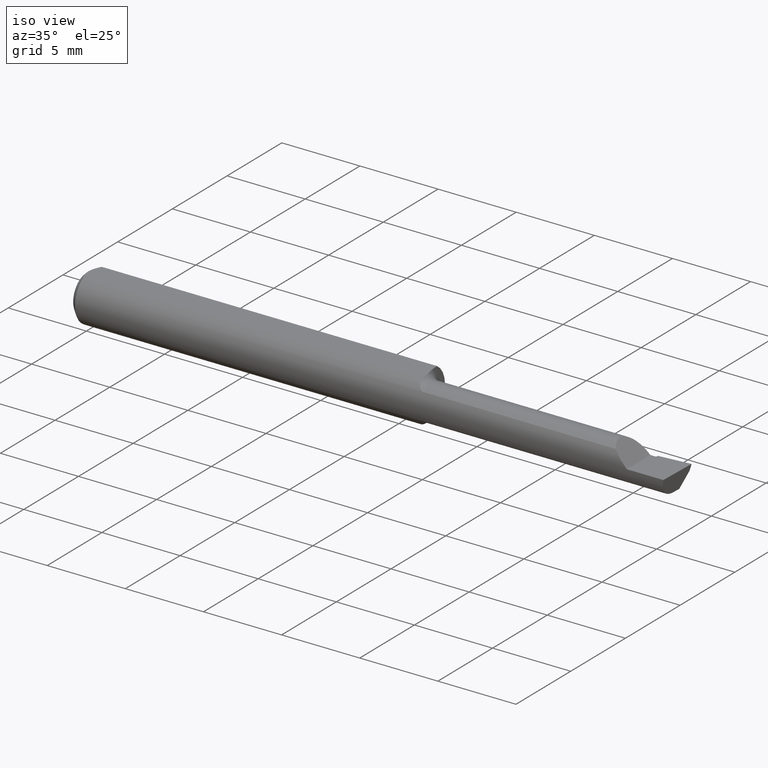
[diagram: clean part render]
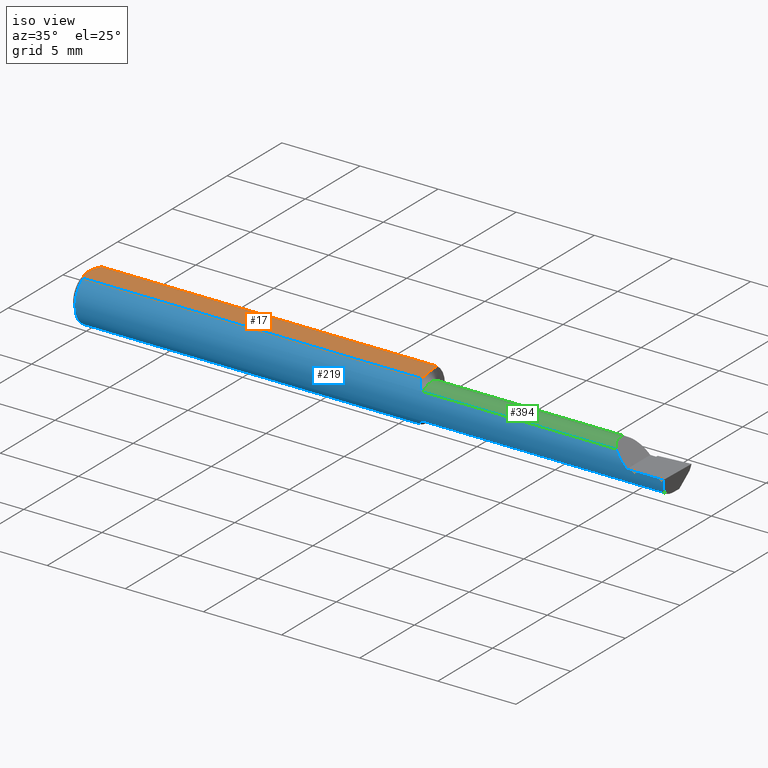
[diagram: same view with three faces highlighted in distinct colors, each labeled with its STEP entity id]
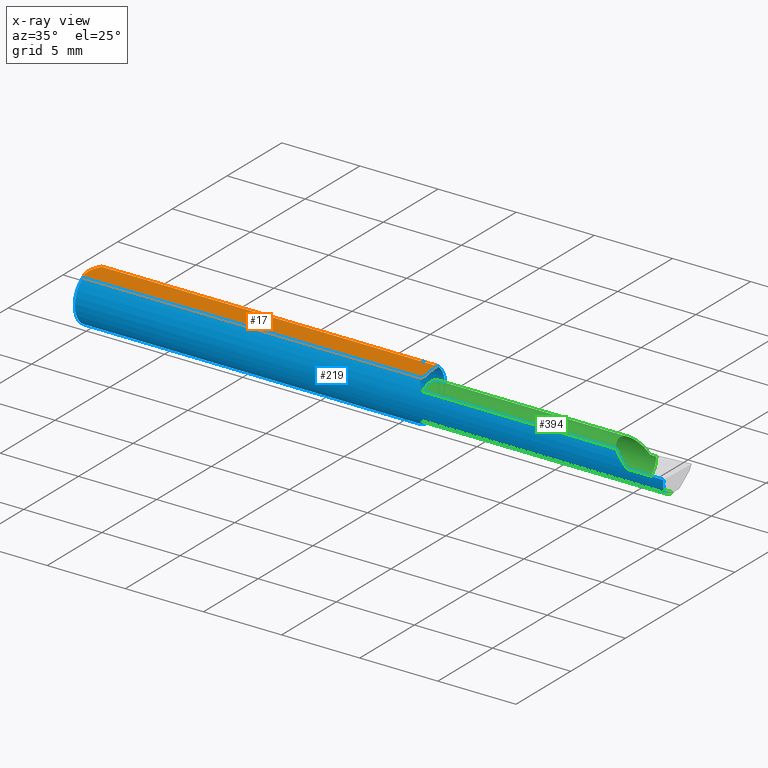
[diagram: x-ray of the same camera — body ghosted, the three highlighted faces saturated]
A machine part, iso view with three faces highlighted in distinct colors.
The next image is the same camera in x-ray (body ghosted, the three faces saturated) — at least one of them is partly hidden behind the body in this view.
Their STEP definitions:

[orange] entity #17 — the highlighted planar face has unit normal (0, -0, -1).
#1 = DIRECTION ( 'NONE',  ( 5.691349986800549142E-18, -1.000000000000000000, 7.598598113218357399E-17 ) ) ;
#2 = VERTEX_POINT ( 'NONE', #371 ) ;
#6 = CARTESIAN_POINT ( 'NONE',  ( 0.004999999999989931769, 7.898418181085889318E-16, 0.05235000000000000070 ) ) ;
#17 = ADVANCED_FACE ( 'NONE', ( #181 ), #389, .F. ) ;
#23 = CARTESIAN_POINT ( 'NONE',  ( 0.000000000000000000, 0.03386738844375223462, 0.05234999999999997988 ) ) ;
#25 = B_SPLINE_CURVE_WITH_KNOTS ( 'NONE', 3,
 ( #290, #202, #486, #287, #250, #6 ),
 .UNSPECIFIED., .F., .F.,
 ( 4, 2, 4 ),
 ( 0.002133667072902290657, 0.002585433046183636171, 0.003037199019464981685 ),
 .UNSPECIFIED. ) ;
#28 = LINE ( 'NONE', #23, #36 ) ;
#36 = VECTOR ( 'NONE', #452, 39.37007874015748143 ) ;
#41 = B_SPLINE_CURVE_WITH_KNOTS ( 'NONE', 3,
 ( #244, #583, #52, #392, #243, #483, #445, #197, #149, #101, #194, #95, #50, #337 ),
 .UNSPECIFIED., .F., .F.,
 ( 4, 2, 2, 2, 2, 2, 4 ),
 ( 0.008234143088603517943, 0.008591734916881395637, 0.008770530831020334483, 0.008859928788089801305, 0.008949326745159269861, 0.009306918573437145820, 0.009664510401715021778 ),
 .UNSPECIFIED. ) ;
#50 = CARTESIAN_POINT ( 'NONE',  ( 0.8670657631504199436, -0.02914627190158990133, 0.05235000000000000764 ) ) ;
#52 = CARTESIAN_POINT ( 'NONE',  ( 0.8606843363331831975, 0.01400540109987305146, 0.05235000000000000070 ) ) ;
#66 = ORIENTED_EDGE ( 'NONE', *, *, #508, .F. ) ;
#70 = CARTESIAN_POINT ( 'NONE',  ( 0.01500000000000185039, -0.03386738844380016850, 0.05235000000000000070 ) ) ;
#95 = CARTESIAN_POINT ( 'NONE',  ( 0.8675168895146677661, -0.02435447415594422377, 0.05235000000000000070 ) ) ;
#99 = CARTESIAN_POINT ( 'NONE',  ( 0.009669996313769784607, 0.02323004575534281385, 0.05234999999999998682 ) ) ;
#101 = CARTESIAN_POINT ( 'NONE',  ( 0.8661447494546045123, -0.01034308142135324446, 0.05235000000000000070 ) ) ;
#113 = ORIENTED_EDGE ( 'NONE', *, *, #325, .F. ) ;
#149 = CARTESIAN_POINT ( 'NONE',  ( 0.8648180388757457093, -0.004579228880846318919, 0.05235000000000001458 ) ) ;
#163 = CARTESIAN_POINT ( 'NONE',  ( 0.8600000000000000977, 0.02414546164772663275, 0.05235000000000000070 ) ) ;
#165 = VECTOR ( 'NONE', #1, 39.37007874015748143 ) ;
#181 = FACE_OUTER_BOUND ( 'NONE', #391, .T. ) ;
#188 = CARTESIAN_POINT ( 'NONE',  ( 0.000000000000000000, -0.03386738844375222768, 0.05234999999999997988 ) ) ;
#191 = DIRECTION ( 'NONE',  ( -1.000000000000000000, -0.000000000000000000, -0.000000000000000000 ) ) ;
#194 = CARTESIAN_POINT ( 'NONE',  ( 0.8670297040742722672, -0.01497150789875728583, 0.05235000000000000070 ) ) ;
#197 = CARTESIAN_POINT ( 'NONE',  ( 0.8645436151954090098, -0.003431463083333101752, 0.05235000000000000764 ) ) ;
#200 = CARTESIAN_POINT ( 'NONE',  ( 0.004999999999989931769, 7.898418181085889318E-16, 0.05235000000000000070 ) ) ;
#202 = CARTESIAN_POINT ( 'NONE',  ( 0.01216137397042175820, -0.02864146636719541034, 0.05235000000000000070 ) ) ;
#233 = EDGE_CURVE ( 'NONE', #2, #557, #28, .T. ) ;
#243 = CARTESIAN_POINT ( 'NONE',  ( 0.8627471345220282251, 0.004017454403653720856, 0.05235000000000000070 ) ) ;
#244 = CARTESIAN_POINT ( 'NONE',  ( 0.8600000000000000977, 0.02414546164772663275, 0.05235000000000000070 ) ) ;
#250 = CARTESIAN_POINT ( 'NONE',  ( 0.004999999999998879473, -0.005957634400466955450, 0.05235000000000000070 ) ) ;
#263 = VERTEX_POINT ( 'NONE', #163 ) ;
#272 = ORIENTED_EDGE ( 'NONE', *, *, #233, .F. ) ;
#287 = CARTESIAN_POINT ( 'NONE',  ( 0.006057557792978140489, -0.01187252718384441616, 0.05234999999999998682 ) ) ;
#289 = VERTEX_POINT ( 'NONE', #450 ) ;
#290 = CARTESIAN_POINT ( 'NONE',  ( 0.01500000000000185039, -0.03386738844380016850, 0.05235000000000000070 ) ) ;
#304 = LINE ( 'NONE', #496, #165 ) ;
#325 = EDGE_CURVE ( 'NONE', #557, #263, #304, .T. ) ;
#326 = ORIENTED_EDGE ( 'NONE', *, *, #548, .F. ) ;
#337 = CARTESIAN_POINT ( 'NONE',  ( 0.8661821896890746775, -0.03386738844375222074, 0.05235000000000000070 ) ) ;
#346 = DIRECTION ( 'NONE',  ( 0.000000000000000000, -7.598598113218357399E-17, -1.000000000000000000 ) ) ;
#348 = CARTESIAN_POINT ( 'NONE',  ( 0.006064493299689842180, 0.01189382783781397189, 0.05235000000000000070 ) ) ;
#367 = ORIENTED_EDGE ( 'NONE', *, *, #488, .F. ) ;
#371 = CARTESIAN_POINT ( 'NONE',  ( 0.01500000000000000465, 0.03386738844375223462, 0.05234999999999997988 ) ) ;
#380 = LINE ( 'NONE', #188, #431 ) ;
#389 = PLANE ( 'NONE',  #421 ) ;
#391 = EDGE_LOOP ( 'NONE', ( #66, #113, #272, #326, #367, #399 ) ) ;
#392 = CARTESIAN_POINT ( 'NONE',  ( 0.8621728268178152632, 0.006508548278878081503, 0.05235000000000000070 ) ) ;
#399 = ORIENTED_EDGE ( 'NONE', *, *, #423, .F. ) ;
#421 = AXIS2_PLACEMENT_3D ( 'NONE', #441, #346, #446 ) ;
#423 = EDGE_CURVE ( 'NONE', #603, #629, #380, .T. ) ;
#431 = VECTOR ( 'NONE', #191, 39.37007874015748143 ) ;
#440 = CARTESIAN_POINT ( 'NONE',  ( 0.01500000000000000465, 0.03386738844375223462, 0.05234999999999997988 ) ) ;
#441 = CARTESIAN_POINT ( 'NONE',  ( 1.500000000000000222, 0.1123499999999999915, 0.05234999999999998682 ) ) ;
#445 = CARTESIAN_POINT ( 'NONE',  ( 0.8639433730835746061, -0.0009488278625737271406, 0.05234999999999998682 ) ) ;
#446 = DIRECTION ( 'NONE',  ( 0.000000000000000000, 1.000000000000000000, -7.598598113218357399E-17 ) ) ;
#450 = CARTESIAN_POINT ( 'NONE',  ( 0.004999999999989931769, 7.898418181085889318E-16, 0.05235000000000000070 ) ) ;
#452 = DIRECTION ( 'NONE',  ( 1.000000000000000000, 0.000000000000000000, 0.000000000000000000 ) ) ;
#483 = CARTESIAN_POINT ( 'NONE',  ( 0.8636403934954570705, 0.0002918085034137851675, 0.05234999999999998682 ) ) ;
#486 = CARTESIAN_POINT ( 'NONE',  ( 0.009678036133109307534, -0.02325481837211496039, 0.05235000000000000070 ) ) ;
#488 = EDGE_CURVE ( 'NONE', #629, #289, #25, .T. ) ;
#496 = CARTESIAN_POINT ( 'NONE',  ( 0.8600000000000000977, 0.1123499999999999915, 0.05234999999999998682 ) ) ;
#508 = EDGE_CURVE ( 'NONE', #263, #603, #41, .T. ) ;
#530 = CARTESIAN_POINT ( 'NONE',  ( 0.8600000000000000977, 0.03386738844375224156, 0.05235000000000000070 ) ) ;
#537 = CARTESIAN_POINT ( 'NONE',  ( 0.004999999999999268051, 0.005945714695019511074, 0.05235000000000000070 ) ) ;
#548 = EDGE_CURVE ( 'NONE', #289, #2, #596, .T. ) ;
#557 = VERTEX_POINT ( 'NONE', #530 ) ;
#558 = CARTESIAN_POINT ( 'NONE',  ( 0.8661821896890746775, -0.03386738844375222074, 0.05235000000000000070 ) ) ;
#583 = CARTESIAN_POINT ( 'NONE',  ( 0.8599999999999998757, 0.01903747135664260806, 0.05235000000000001458 ) ) ;
#590 = CARTESIAN_POINT ( 'NONE',  ( 0.01218518006020415795, 0.02868529347538067639, 0.05235000000000000070 ) ) ;
#596 = B_SPLINE_CURVE_WITH_KNOTS ( 'NONE', 3,
 ( #200, #537, #348, #99, #590, #440 ),
 .UNSPECIFIED., .F., .F.,
 ( 4, 2, 4 ),
 ( 0.003037199019464981685, 0.003488061124369676216, 0.003938923229274370746 ),
 .UNSPECIFIED. ) ;
#603 = VERTEX_POINT ( 'NONE', #558 ) ;
#629 = VERTEX_POINT ( 'NONE', #70 ) ;

[blue] entity #219 — the highlighted cylindrical surface (edge-blend (fillet) strip) has radius 1.5837 mm, axis along (-1, -0, -0).
#2 = VERTEX_POINT ( 'NONE', #371 ) ;
#4 = CARTESIAN_POINT ( 'NONE',  ( 0.8698990837423206113, -0.04251446938472885906, 0.04588310374207914960 ) ) ;
#5 = CARTESIAN_POINT ( 'NONE',  ( 1.405000000000000249, -0.06235000000000005121, 1.163414459189985436E-17 ) ) ;
#10 = CARTESIAN_POINT ( 'NONE',  ( 0.8787757133464819681, -0.05116520334387904267, -0.03564627526859106416 ) ) ;
#13 = CARTESIAN_POINT ( 'NONE',  ( 0.8599999999999956568, 0.004792881695546979959, -0.06254535345742004426 ) ) ;
#23 = CARTESIAN_POINT ( 'NONE',  ( 0.000000000000000000, 0.03386738844375223462, 0.05234999999999997988 ) ) ;
#28 = LINE ( 'NONE', #23, #36 ) ;
#30 = DIRECTION ( 'NONE',  ( -1.000000000000000000, -0.000000000000000000, -0.000000000000000000 ) ) ;
#33 = CARTESIAN_POINT ( 'NONE',  ( 1.493589448587071544, -0.05267366071428580820, -0.03336177403790607093 ) ) ;
#34 = VERTEX_POINT ( 'NONE', #249 ) ;
#36 = VECTOR ( 'NONE', #452, 39.37007874015748143 ) ;
#38 = ORIENTED_EDGE ( 'NONE', *, *, #423, .T. ) ;
#45 = CARTESIAN_POINT ( 'NONE',  ( 1.494656860756163885, -0.05903713403021959572, -0.02331472336167218079 ) ) ;
#54 = CARTESIAN_POINT ( 'NONE',  ( 0.8678735227475140590, -0.03849383661596396389, 0.04935695859860204926 ) ) ;
#57 = CARTESIAN_POINT ( 'NONE',  ( 0.8659889881172213588, -0.03406974560157234599, -0.05264335079965574982 ) ) ;
#59 = CARTESIAN_POINT ( 'NONE',  ( 0.8602764403634770574, -0.002103274276246028252, -0.06268864719924559237 ) ) ;
#64 = VECTOR ( 'NONE', #175, 39.37007874015748143 ) ;
#70 = CARTESIAN_POINT ( 'NONE',  ( 0.01500000000000185039, -0.03386738844380016850, 0.05235000000000000070 ) ) ;
#74 = LINE ( 'NONE', #502, #256 ) ;
#78 = VERTEX_POINT ( 'NONE', #5 ) ;
#86 = ORIENTED_EDGE ( 'NONE', *, *, #233, .T. ) ;
#96 = EDGE_CURVE ( 'NONE', #78, #170, #274, .T. ) ;
#102 = CARTESIAN_POINT ( 'NONE',  ( 1.405000000000000249, -0.06235000000000005121, 1.163414459189985436E-17 ) ) ;
#105 = EDGE_CURVE ( 'NONE', #225, #170, #485, .T. ) ;
#124 = DIRECTION ( 'NONE',  ( 0.000000000000000000, 0.000000000000000000, 1.000000000000000000 ) ) ;
#125 = ORIENTED_EDGE ( 'NONE', *, *, #436, .T. ) ;
#140 = DIRECTION ( 'NONE',  ( 0.000000000000000000, 1.000000000000000000, 0.000000000000000000 ) ) ;
#151 = CARTESIAN_POINT ( 'NONE',  ( 0.8821345559677671311, -0.05240678568573022694, 0.03378794548805848230 ) ) ;
#153 = CARTESIAN_POINT ( 'NONE',  ( 0.8850000000000001199, -0.05267366071428591229, 0.03336177403790595297 ) ) ;
#159 = CARTESIAN_POINT ( 'NONE',  ( 0.8600000000000000977, 0.01155624999999977677, -0.06126969549408178839 ) ) ;
#170 = VERTEX_POINT ( 'NONE', #535 ) ;
#171 = CARTESIAN_POINT ( 'NONE',  ( 1.493589448587071544, -0.05267366071428580820, -0.03336177403790607093 ) ) ;
#175 = DIRECTION ( 'NONE',  ( -1.000000000000000000, -5.691349986800549142E-18, -0.000000000000000000 ) ) ;
#182 = DIRECTION ( 'NONE',  ( -1.000000000000000000, -0.000000000000000000, -0.000000000000000000 ) ) ;
#186 = ORIENTED_EDGE ( 'NONE', *, *, #105, .F. ) ;
#188 = CARTESIAN_POINT ( 'NONE',  ( 0.000000000000000000, -0.03386738844375222768, 0.05234999999999997988 ) ) ;
#191 = DIRECTION ( 'NONE',  ( -1.000000000000000000, -0.000000000000000000, -0.000000000000000000 ) ) ;
#205 = CARTESIAN_POINT ( 'NONE',  ( 0.8835376041507415623, -0.05267366071513955583, 0.03336177403655844753 ) ) ;
#208 = CARTESIAN_POINT ( 'NONE',  ( 1.152500000000000080, -0.05267366071428580820, -0.03336177403790607093 ) ) ;
#214 = DIRECTION ( 'NONE',  ( -1.000000000000000000, -0.000000000000000000, -0.000000000000000000 ) ) ;
#219 = ADVANCED_FACE ( 'NONE', ( #549 ), #602, .T. ) ;
#225 = VERTEX_POINT ( 'NONE', #357 ) ;
#233 = EDGE_CURVE ( 'NONE', #2, #557, #28, .T. ) ;
#234 = CARTESIAN_POINT ( 'NONE',  ( 0.01500000000000000465, 0.000000000000000000, 0.000000000000000000 ) ) ;
#235 = ORIENTED_EDGE ( 'NONE', *, *, #316, .F. ) ;
#238 = DIRECTION ( 'NONE',  ( 0.000000000000000000, 0.000000000000000000, 1.000000000000000000 ) ) ;
#241 = CARTESIAN_POINT ( 'NONE',  ( 0.8832409546724755423, -0.05267366071428588453, -0.03336177403790597379 ) ) ;
#248 = CARTESIAN_POINT ( 'NONE',  ( 0.8627289934230484292, -0.02215482600002546126, -0.05866202889160986034 ) ) ;
#249 = CARTESIAN_POINT ( 'NONE',  ( 0.01500000000000000465, 0.000000000000000000, -0.06235000000000000264 ) ) ;
#254 = DIRECTION ( 'NONE',  ( 0.000000000000000000, 0.000000000000000000, 1.000000000000000000 ) ) ;
#256 = VECTOR ( 'NONE', #214, 39.37007874015748143 ) ;
#259 = EDGE_LOOP ( 'NONE', ( #235, #125, #576, #582, #186, #531, #38, #465, #560, #86, #420, #566 ) ) ;
#265 = VERTEX_POINT ( 'NONE', #171 ) ;
#266 = AXIS2_PLACEMENT_3D ( 'NONE', #234, #182, #238 ) ;
#267 = CIRCLE ( 'NONE', #266, 0.06235000000000000264 ) ;
#274 =( BOUNDED_CURVE ( )  B_SPLINE_CURVE ( 3, ( #102, #344, #545, #444 ),
 .UNSPECIFIED., .F., .F. ) 
 B_SPLINE_CURVE_WITH_KNOTS ( ( 4, 4 ),
 ( 4.712388980384689674, 5.276982613231238517 ),
 .UNSPECIFIED. ) 
 CURVE ( )  GEOMETRIC_REPRESENTATION_ITEM ( )  RATIONAL_B_SPLINE_CURVE ( ( 1.000000000000000000, 0.9736121104788258984, 0.9736121104788258984, 1.000000000000000000 ) ) 
 REPRESENTATION_ITEM ( '' )  );
#276 = VERTEX_POINT ( 'NONE', #506 ) ;
#281 = CARTESIAN_POINT ( 'NONE',  ( 1.497433779686218935, -0.06235000000000005121, 2.433176676323288696E-19 ) ) ;
#283 = EDGE_CURVE ( 'NONE', #34, #629, #349, .T. ) ;
#286 = AXIS2_PLACEMENT_3D ( 'NONE', #459, #306, #254 ) ;
#296 = CARTESIAN_POINT ( 'NONE',  ( 0.8726126354017768039, -0.04600867268841657420, -0.04219264322731242078 ) ) ;
#299 = CARTESIAN_POINT ( 'NONE',  ( 0.8743270384831822728, -0.04799382633214965832, -0.03989142061000421069 ) ) ;
#306 = DIRECTION ( 'NONE',  ( -1.000000000000000000, -0.000000000000000000, -0.000000000000000000 ) ) ;
#316 = EDGE_CURVE ( 'NONE', #265, #467, #416, .T. ) ;
#324 = CARTESIAN_POINT ( 'NONE',  ( 1.495973035530413053, -0.06235000000000000264, -0.01189272970908753294 ) ) ;
#335 = CARTESIAN_POINT ( 'NONE',  ( 0.8850000000000001199, -0.05267366071428591229, -0.03336177403790595297 ) ) ;
#341 = CARTESIAN_POINT ( 'NONE',  ( 0.8815922039432545487, -0.05228879390856559090, -0.03397671269166890884 ) ) ;
#344 = CARTESIAN_POINT ( 'NONE',  ( 1.393107270290912414, -0.06234999999999999570, 0.01189272970908749824 ) ) ;
#345 = CARTESIAN_POINT ( 'NONE',  ( 0.8850000000000001199, -0.05267366071428591229, -0.03336177403790595297 ) ) ;
#349 = CIRCLE ( 'NONE', #631, 0.06235000000000000264 ) ;
#353 = DIRECTION ( 'NONE',  ( 1.000000000000000000, 5.691349986800549142E-18, 0.000000000000000000 ) ) ;
#357 = CARTESIAN_POINT ( 'NONE',  ( 0.8850000000000001199, -0.05267366071428591229, 0.03336177403790595297 ) ) ;
#364 = CARTESIAN_POINT ( 'NONE',  ( 0.01500000000000000465, 0.000000000000000000, 0.000000000000000000 ) ) ;
#371 = CARTESIAN_POINT ( 'NONE',  ( 0.01500000000000000465, 0.03386738844375223462, 0.05234999999999997988 ) ) ;
#380 = LINE ( 'NONE', #188, #431 ) ;
#388 = CARTESIAN_POINT ( 'NONE',  ( 0.8756610829636816140, -0.04915643512136042004, 0.03841395140597848173 ) ) ;
#390 = B_SPLINE_CURVE_WITH_KNOTS ( 'NONE', 3,
 ( #434, #54, #4, #581, #388, #437, #534, #151, #205, #153 ),
 .UNSPECIFIED., .F., .F.,
 ( 4, 2, 2, 2, 4 ),
 ( 3.797231421916798275E-07, 0.0004333373953855917818, 0.0006498162315072892508, 0.0007580556495681347326, 0.0008662950676289801061 ),
 .UNSPECIFIED. ) ;
#396 = CIRCLE ( 'NONE', #610, 0.06235000000000000264 ) ;
#400 = EDGE_CURVE ( 'NONE', #2, #34, #267, .T. ) ;
#408 =( BOUNDED_CURVE ( )  B_SPLINE_CURVE ( 3, ( #33, #45, #324, #419 ),
 .UNSPECIFIED., .F., .F. ) 
 B_SPLINE_CURVE_WITH_KNOTS ( ( 4, 4 ),
 ( 0.7961532496683338955, 1.360746882514883849 ),
 .UNSPECIFIED. ) 
 CURVE ( )  GEOMETRIC_REPRESENTATION_ITEM ( )  RATIONAL_B_SPLINE_CURVE ( ( 1.000000000000000000, 0.9736121104788257874, 0.9736121104788257874, 1.000000000000000000 ) ) 
 REPRESENTATION_ITEM ( '' )  );
#416 = LINE ( 'NONE', #208, #64 ) ;
#419 = CARTESIAN_POINT ( 'NONE',  ( 1.497433779686218935, -0.06235000000000005121, 2.433176676323288696E-19 ) ) ;
#420 = ORIENTED_EDGE ( 'NONE', *, *, #484, .F. ) ;
#423 = EDGE_CURVE ( 'NONE', #603, #629, #380, .T. ) ;
#427 = VERTEX_POINT ( 'NONE', #281 ) ;
#431 = VECTOR ( 'NONE', #191, 39.37007874015748143 ) ;
#434 = CARTESIAN_POINT ( 'NONE',  ( 0.8661821896890746775, -0.03386738844375222074, 0.05235000000000000070 ) ) ;
#436 = EDGE_CURVE ( 'NONE', #265, #427, #408, .T. ) ;
#437 = CARTESIAN_POINT ( 'NONE',  ( 0.8785877219039734953, -0.05102224570557689631, 0.03585204334870991522 ) ) ;
#442 = CARTESIAN_POINT ( 'NONE',  ( 0.8616480927463245898, -0.01564147840104316428, -0.06074236086770337661 ) ) ;
#444 = CARTESIAN_POINT ( 'NONE',  ( 1.371638225962093838, -0.05267366071428583596, 0.03336177403790605012 ) ) ;
#452 = DIRECTION ( 'NONE',  ( 1.000000000000000000, 0.000000000000000000, 0.000000000000000000 ) ) ;
#454 = B_SPLINE_CURVE_WITH_KNOTS ( 'NONE', 3,
 ( #345, #241, #341, #10, #539, #299, #296, #491, #57, #248, #442, #59, #13, #159 ),
 .UNSPECIFIED., .F., .F.,
 ( 4, 2, 2, 2, 2, 2, 4 ),
 ( 1.960001601931791046E-07, 0.0001315703184465657094, 0.0002629446367329382750, 0.0005256932733056828098, 0.001051190546451171446, 0.001576687819596660298, 0.002102185092742148934 ),
 .UNSPECIFIED. ) ;
#459 = CARTESIAN_POINT ( 'NONE',  ( 0.000000000000000000, 0.000000000000000000, 0.000000000000000000 ) ) ;
#465 = ORIENTED_EDGE ( 'NONE', *, *, #283, .F. ) ;
#467 = VERTEX_POINT ( 'NONE', #335 ) ;
#479 = CARTESIAN_POINT ( 'NONE',  ( 0.8600000000000000977, 0.000000000000000000, 0.000000000000000000 ) ) ;
#484 = EDGE_CURVE ( 'NONE', #276, #557, #396, .T. ) ;
#485 = LINE ( 'NONE', #595, #552 ) ;
#491 = CARTESIAN_POINT ( 'NONE',  ( 0.8681327455766958412, -0.03943215935316558840, -0.04868886658133497053 ) ) ;
#493 = EDGE_CURVE ( 'NONE', #603, #225, #390, .T. ) ;
#502 = CARTESIAN_POINT ( 'NONE',  ( 2.249639673992788601E-32, -0.06234999999999999570, 1.836970198721030427E-16 ) ) ;
#506 = CARTESIAN_POINT ( 'NONE',  ( 0.8600000000000000977, 0.01155624999999977677, -0.06126969549408178839 ) ) ;
#520 = DIRECTION ( 'NONE',  ( 1.000000000000000000, 5.691349986800549142E-18, 0.000000000000000000 ) ) ;
#530 = CARTESIAN_POINT ( 'NONE',  ( 0.8600000000000000977, 0.03386738844375224156, 0.05235000000000000070 ) ) ;
#531 = ORIENTED_EDGE ( 'NONE', *, *, #493, .F. ) ;
#534 = CARTESIAN_POINT ( 'NONE',  ( 0.8796548993184859500, -0.05157034440792591240, 0.03505133412385288971 ) ) ;
#535 = CARTESIAN_POINT ( 'NONE',  ( 1.371638225962093838, -0.05267366071428583596, 0.03336177403790605012 ) ) ;
#539 = CARTESIAN_POINT ( 'NONE',  ( 0.8775684941556225471, -0.05043275970182661133, -0.03668598949093532929 ) ) ;
#545 = CARTESIAN_POINT ( 'NONE',  ( 1.381685276638327409, -0.05903713403021958878, 0.02331472336167212528 ) ) ;
#549 = FACE_OUTER_BOUND ( 'NONE', #259, .T. ) ;
#552 = VECTOR ( 'NONE', #353, 39.37007874015748143 ) ;
#557 = VERTEX_POINT ( 'NONE', #530 ) ;
#558 = CARTESIAN_POINT ( 'NONE',  ( 0.8661821896890746775, -0.03386738844375222074, 0.05235000000000000070 ) ) ;
#560 = ORIENTED_EDGE ( 'NONE', *, *, #400, .F. ) ;
#566 = ORIENTED_EDGE ( 'NONE', *, *, #575, .F. ) ;
#575 = EDGE_CURVE ( 'NONE', #467, #276, #454, .T. ) ;
#576 = ORIENTED_EDGE ( 'NONE', *, *, #632, .T. ) ;
#581 = CARTESIAN_POINT ( 'NONE',  ( 0.8740738374070419203, -0.04761084945882113062, 0.04033650601908229244 ) ) ;
#582 = ORIENTED_EDGE ( 'NONE', *, *, #96, .T. ) ;
#595 = CARTESIAN_POINT ( 'NONE',  ( 1.152500000000000080, -0.05267366071428580820, 0.03336177403790607093 ) ) ;
#602 = CYLINDRICAL_SURFACE ( 'NONE', #286, 0.06235000000000000264 ) ;
#603 = VERTEX_POINT ( 'NONE', #558 ) ;
#610 = AXIS2_PLACEMENT_3D ( 'NONE', #479, #520, #140 ) ;
#629 = VERTEX_POINT ( 'NONE', #70 ) ;
#631 = AXIS2_PLACEMENT_3D ( 'NONE', #364, #30, #124 ) ;
#632 = EDGE_CURVE ( 'NONE', #427, #78, #74, .T. ) ;

[green] entity #394 — the highlighted cylindrical surface (edge-blend (fillet) strip) has radius 1.1443 mm, axis along (-1, -0, -0).
#9 = EDGE_CURVE ( 'NONE', #170, #329, #126, .T. ) ;
#11 = CARTESIAN_POINT ( 'NONE',  ( 1.341051366671215384, -0.01896673977657559532, 0.06394863332878403250 ) ) ;
#14 = DIRECTION ( 'NONE',  ( 0.000000000000000000, -1.000000000000000000, 0.000000000000000000 ) ) ;
#24 = VERTEX_POINT ( 'NONE', #584 ) ;
#26 = AXIS2_PLACEMENT_3D ( 'NONE', #546, #599, #292 ) ;
#64 = VECTOR ( 'NONE', #175, 39.37007874015748143 ) ;
#77 = EDGE_CURVE ( 'NONE', #585, #633, #127, .T. ) ;
#80 = LINE ( 'NONE', #626, #321 ) ;
#85 = FACE_OUTER_BOUND ( 'NONE', #148, .T. ) ;
#97 = CARTESIAN_POINT ( 'NONE',  ( 1.405000000000000249, 0.02264999999999992714, 1.163414459189985436E-17 ) ) ;
#105 = EDGE_CURVE ( 'NONE', #225, #170, #485, .T. ) ;
#107 = DIRECTION ( 'NONE',  ( 1.000000000000000000, 5.691349986800549142E-18, 0.000000000000000000 ) ) ;
#123 = CARTESIAN_POINT ( 'NONE',  ( 1.420000000000000151, 0.01811171944543688711, -0.01970540757188765646 ) ) ;
#126 =( BOUNDED_CURVE ( )  B_SPLINE_CURVE ( 3, ( #134, #11, #242, #97 ),
 .UNSPECIFIED., .F., .T. ) 
 B_SPLINE_CURVE_WITH_KNOTS ( ( 4, 4 ),
 ( 5.546277306536651075, 7.853981633974482790 ),
 .UNSPECIFIED. ) 
 CURVE ( )  GEOMETRIC_REPRESENTATION_ITEM ( )  RATIONAL_B_SPLINE_CURVE ( ( 1.000000000000000000, 0.6033122017619985122, 0.6033122017619985122, 1.000000000000000000 ) ) 
 REPRESENTATION_ITEM ( '' )  );
#127 = CIRCLE ( 'NONE', #439, 0.04504999999999995813 ) ;
#130 = CARTESIAN_POINT ( 'NONE',  ( 1.492874371667013866, -0.04428776192107813925, -0.04097143695815293196 ) ) ;
#134 = CARTESIAN_POINT ( 'NONE',  ( 1.371638225962093838, -0.05267366071428583596, 0.03336177403790605012 ) ) ;
#136 = DIRECTION ( 'NONE',  ( -1.000000000000000000, 5.691349986800548372E-18, -0.000000000000000000 ) ) ;
#142 = EDGE_CURVE ( 'NONE', #585, #24, #563, .T. ) ;
#144 = CARTESIAN_POINT ( 'NONE',  ( 1.492650040401416689, -0.03372388044486963887, -0.04504999999999997201 ) ) ;
#148 = EDGE_LOOP ( 'NONE', ( #183, #517, #521, #414, #308, #453, #456, #338, #469, #417 ) ) ;
#150 = DIRECTION ( 'NONE',  ( -1.000000000000000000, -5.691349986800549142E-18, -0.000000000000000000 ) ) ;
#155 = LINE ( 'NONE', #494, #179 ) ;
#170 = VERTEX_POINT ( 'NONE', #535 ) ;
#171 = CARTESIAN_POINT ( 'NONE',  ( 1.493589448587071544, -0.05267366071428580820, -0.03336177403790607093 ) ) ;
#175 = DIRECTION ( 'NONE',  ( -1.000000000000000000, -5.691349986800549142E-18, -0.000000000000000000 ) ) ;
#176 = VERTEX_POINT ( 'NONE', #383 ) ;
#179 = VECTOR ( 'NONE', #386, 39.37007874015748143 ) ;
#183 = ORIENTED_EDGE ( 'NONE', *, *, #457, .F. ) ;
#185 = EDGE_CURVE ( 'NONE', #612, #633, #307, .T. ) ;
#198 = CARTESIAN_POINT ( 'NONE',  ( 1.420000000000000151, -0.02239999999999999630, 0.000000000000000000 ) ) ;
#208 = CARTESIAN_POINT ( 'NONE',  ( 1.152500000000000080, -0.05267366071428580820, -0.03336177403790607093 ) ) ;
#225 = VERTEX_POINT ( 'NONE', #357 ) ;
#228 = CYLINDRICAL_SURFACE ( 'NONE', #542, 0.04504999999999995813 ) ;
#242 = CARTESIAN_POINT ( 'NONE',  ( 1.359483931624303699, 0.02264999999999996183, 0.04551606837569584924 ) ) ;
#265 = VERTEX_POINT ( 'NONE', #171 ) ;
#292 = DIRECTION ( 'NONE',  ( 0.000000000000000000, -1.000000000000000000, 0.000000000000000000 ) ) ;
#307 = CIRCLE ( 'NONE', #26, 0.04504999999999999283 ) ;
#308 = ORIENTED_EDGE ( 'NONE', *, *, #9, .T. ) ;
#316 = EDGE_CURVE ( 'NONE', #265, #467, #416, .T. ) ;
#321 = VECTOR ( 'NONE', #136, 39.37007874015748143 ) ;
#329 = VERTEX_POINT ( 'NONE', #574 ) ;
#333 = DIRECTION ( 'NONE',  ( -1.000000000000000000, -5.691349986800549142E-18, -0.000000000000000000 ) ) ;
#335 = CARTESIAN_POINT ( 'NONE',  ( 0.8850000000000001199, -0.05267366071428591229, -0.03336177403790595297 ) ) ;
#338 = ORIENTED_EDGE ( 'NONE', *, *, #77, .F. ) ;
#343 = CARTESIAN_POINT ( 'NONE',  ( 0.8850000000000001199, -0.02239999999999999977, 0.000000000000000000 ) ) ;
#353 = DIRECTION ( 'NONE',  ( 1.000000000000000000, 5.691349986800549142E-18, 0.000000000000000000 ) ) ;
#357 = CARTESIAN_POINT ( 'NONE',  ( 0.8850000000000001199, -0.05267366071428591229, 0.03336177403790595297 ) ) ;
#375 = CARTESIAN_POINT ( 'NONE',  ( 1.492946566646604856, -0.02239999999999999630, -0.04504999999999998589 ) ) ;
#382 = DIRECTION ( 'NONE',  ( 0.000000000000000000, -1.000000000000000000, 0.000000000000000000 ) ) ;
#383 = CARTESIAN_POINT ( 'NONE',  ( 1.492946566646604856, -0.02239999999999999630, -0.04504999999999998589 ) ) ;
#386 = DIRECTION ( 'NONE',  ( 1.000000000000000000, 5.691349986800549142E-18, 0.000000000000000000 ) ) ;
#387 = DIRECTION ( 'NONE',  ( 0.000000000000000000, -1.000000000000000000, -1.776356839400250465E-15 ) ) ;
#394 = ADVANCED_FACE ( 'NONE', ( #85 ), #228, .T. ) ;
#414 = ORIENTED_EDGE ( 'NONE', *, *, #105, .T. ) ;
#416 = LINE ( 'NONE', #208, #64 ) ;
#417 = ORIENTED_EDGE ( 'NONE', *, *, #464, .F. ) ;
#424 = CARTESIAN_POINT ( 'NONE',  ( 1.493589448587071544, -0.05267366071428580820, -0.03336177403790607093 ) ) ;
#438 = CARTESIAN_POINT ( 'NONE',  ( 1.420000000000000151, -0.02239999999999999630, 0.000000000000000000 ) ) ;
#439 = AXIS2_PLACEMENT_3D ( 'NONE', #198, #107, #387 ) ;
#453 = ORIENTED_EDGE ( 'NONE', *, *, #522, .T. ) ;
#456 = ORIENTED_EDGE ( 'NONE', *, *, #185, .T. ) ;
#457 = EDGE_CURVE ( 'NONE', #265, #176, #475, .T. ) ;
#460 = AXIS2_PLACEMENT_3D ( 'NONE', #438, #150, #14 ) ;
#464 = EDGE_CURVE ( 'NONE', #176, #24, #80, .T. ) ;
#467 = VERTEX_POINT ( 'NONE', #335 ) ;
#469 = ORIENTED_EDGE ( 'NONE', *, *, #142, .T. ) ;
#473 = DIRECTION ( 'NONE',  ( 5.691349986800548372E-18, -1.000000000000000000, 0.000000000000000000 ) ) ;
#475 =( BOUNDED_CURVE ( )  B_SPLINE_CURVE ( 3, ( #424, #130, #144, #375 ),
 .UNSPECIFIED., .F., .F. ) 
 B_SPLINE_CURVE_WITH_KNOTS ( ( 4, 4 ),
 ( 5.756326750816665339, 6.493234751459599607 ),
 .UNSPECIFIED. ) 
 CURVE ( )  GEOMETRIC_REPRESENTATION_ITEM ( )  RATIONAL_B_SPLINE_CURVE ( ( 1.000000000000000000, 0.9552568590268900595, 0.9552568590268900595, 1.000000000000000000 ) ) 
 REPRESENTATION_ITEM ( '' )  );
#485 = LINE ( 'NONE', #595, #552 ) ;
#494 = CARTESIAN_POINT ( 'NONE',  ( -2.563953169053419327E-19, 0.02264999999999994448, 1.836970198721030427E-16 ) ) ;
#517 = ORIENTED_EDGE ( 'NONE', *, *, #316, .T. ) ;
#521 = ORIENTED_EDGE ( 'NONE', *, *, #529, .F. ) ;
#522 = EDGE_CURVE ( 'NONE', #329, #612, #155, .T. ) ;
#527 = CARTESIAN_POINT ( 'NONE',  ( 0.000000000000000000, -0.02240000000000000324, 0.000000000000000000 ) ) ;
#529 = EDGE_CURVE ( 'NONE', #225, #467, #624, .T. ) ;
#535 = CARTESIAN_POINT ( 'NONE',  ( 1.371638225962093838, -0.05267366071428583596, 0.03336177403790605012 ) ) ;
#542 = AXIS2_PLACEMENT_3D ( 'NONE', #527, #333, #473 ) ;
#546 = CARTESIAN_POINT ( 'NONE',  ( 1.420000000000000151, -0.02239999999999999630, 0.000000000000000000 ) ) ;
#547 = CARTESIAN_POINT ( 'NONE',  ( 1.420000000000000151, 0.02264999999999999653, 1.836970198721031906E-16 ) ) ;
#552 = VECTOR ( 'NONE', #353, 39.37007874015748143 ) ;
#563 = CIRCLE ( 'NONE', #460, 0.04504999999999999283 ) ;
#574 = CARTESIAN_POINT ( 'NONE',  ( 1.405000000000000249, 0.02264999999999992714, 1.163414459189985436E-17 ) ) ;
#584 = CARTESIAN_POINT ( 'NONE',  ( 1.420000000000000151, -0.02239999999999999630, -0.04504999999999998589 ) ) ;
#585 = VERTEX_POINT ( 'NONE', #608 ) ;
#588 = DIRECTION ( 'NONE',  ( -1.000000000000000000, -5.691349986800549142E-18, -0.000000000000000000 ) ) ;
#595 = CARTESIAN_POINT ( 'NONE',  ( 1.152500000000000080, -0.05267366071428580820, 0.03336177403790607093 ) ) ;
#597 = AXIS2_PLACEMENT_3D ( 'NONE', #343, #588, #382 ) ;
#599 = DIRECTION ( 'NONE',  ( -1.000000000000000000, -5.691349986800549142E-18, -0.000000000000000000 ) ) ;
#608 = CARTESIAN_POINT ( 'NONE',  ( 1.420000000000000151, -0.001476535193823026813, -0.03989625446711345114 ) ) ;
#612 = VERTEX_POINT ( 'NONE', #547 ) ;
#624 = CIRCLE ( 'NONE', #597, 0.04504999999999993732 ) ;
#626 = CARTESIAN_POINT ( 'NONE',  ( 1.500000000000000222, -0.02239999999999999630, -0.04504999999999998589 ) ) ;
#633 = VERTEX_POINT ( 'NONE', #123 ) ;